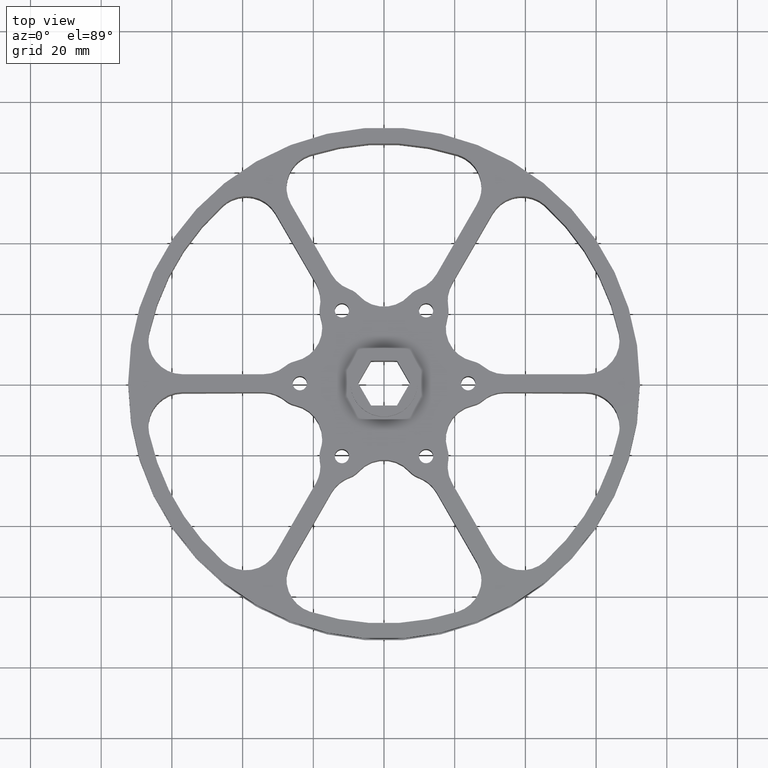
[diagram: clean part render]
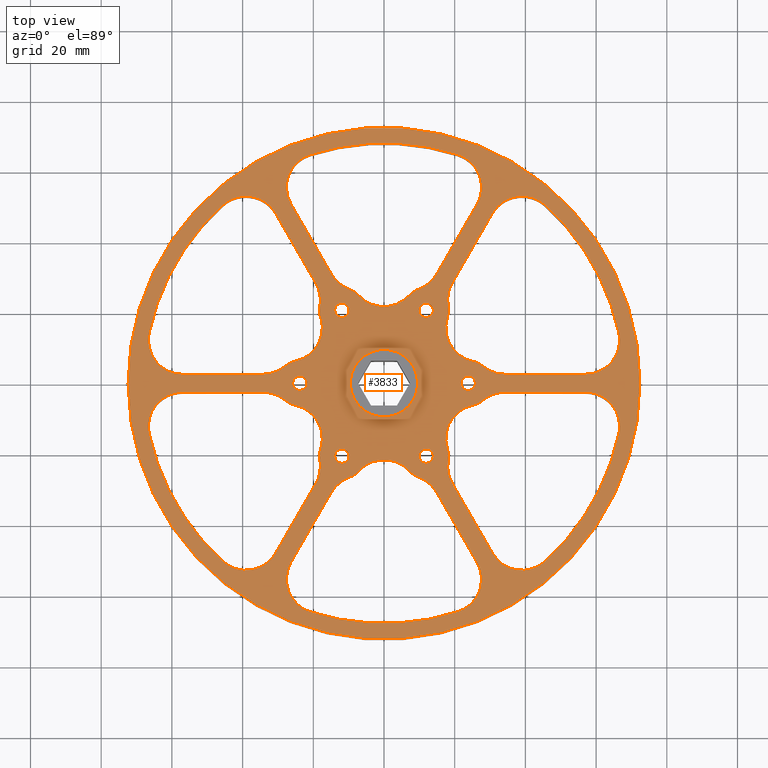
[diagram: same view with one face highlighted and labeled with its STEP entity id]
A machine part, top view. The second image highlights one B-rep face of the part: STEP entity #3833.
In plain terms, the highlighted planar face has unit normal (0, 0, 1).
Its self-contained STEP definition (entity closure, byte-faithful):
#1 = DIRECTION ( 'NONE',  ( 0.0000000000000000000, 1.000000000000000000, 0.0000000000000000000 ) ) ;
#11 = DIRECTION ( 'NONE',  ( 0.0000000000000000000, 0.0000000000000000000, 1.000000000000000000 ) ) ;
#13 = ORIENTED_EDGE ( 'NONE', *, *, #660, .T. ) ;
#15 = CIRCLE ( 'NONE', #1581, 0.3799999999999999489 ) ;
#19 = ORIENTED_EDGE ( 'NONE', *, *, #3947, .F. ) ;
#30 = LINE ( 'NONE', #2016, #2582 ) ;
#37 = DIRECTION ( 'NONE',  ( 0.0000000000000000000, 0.0000000000000000000, -1.000000000000000000 ) ) ;
#47 = EDGE_LOOP ( 'NONE', ( #1236, #3180, #2156, #695, #2550, #1443, #4175, #264, #901, #2987, #251, #13 ) ) ;
#50 = CARTESIAN_POINT ( 'NONE',  ( -2.244242633941351261, -0.4799999999999831068, 1.125000000000000000 ) ) ;
#68 = ORIENTED_EDGE ( 'NONE', *, *, #1587, .F. ) ;
#69 = CIRCLE ( 'NONE', #2360, 0.3799999999999998934 ) ;
#74 = CIRCLE ( 'NONE', #2698, 0.3800000000000000044 ) ;
#79 = CIRCLE ( 'NONE', #106, 2.674999999999999822 ) ;
#87 = AXIS2_PLACEMENT_3D ( 'NONE', #1791, #2579, #3254 ) ;
#88 = EDGE_CURVE ( 'NONE', #3057, #3289, #3298, .T. ) ;
#97 = DIRECTION ( 'NONE',  ( 1.000000000000000000, 0.0000000000000000000, 0.0000000000000000000 ) ) ;
#105 = ORIENTED_EDGE ( 'NONE', *, *, #4028, .F. ) ;
#106 = AXIS2_PLACEMENT_3D ( 'NONE', #3111, #1126, #3461 ) ;
#108 = FACE_BOUND ( 'NONE', #1301, .T. ) ;
#116 = ORIENTED_EDGE ( 'NONE', *, *, #2681, .F. ) ;
#126 = EDGE_CURVE ( 'NONE', #2036, #4261, #3401, .T. ) ;
#141 = CARTESIAN_POINT ( 'NONE',  ( -0.9375000000000004441, 1.336309304147087792E-14, 1.125000000000000444 ) ) ;
#149 = ORIENTED_EDGE ( 'NONE', *, *, #421, .F. ) ;
#153 = CIRCLE ( 'NONE', #3259, 0.3800000000000000600 ) ;
#156 = DIRECTION ( 'NONE',  ( 0.4999999999999918954, -0.8660254037844433705, 0.0000000000000000000 ) ) ;
#160 = VECTOR ( 'NONE', #3935, 39.37007874015748143 ) ;
#161 = CARTESIAN_POINT ( 'NONE',  ( -1.208723857349127018, -1.893571133249301486, 1.125000000000000000 ) ) ;
#162 = AXIS2_PLACEMENT_3D ( 'NONE', #3204, #1206, #3542 ) ;
#171 = VERTEX_POINT ( 'NONE', #3033 ) ;
#172 = AXIS2_PLACEMENT_3D ( 'NONE', #3638, #906, #3222 ) ;
#178 = DIRECTION ( 'NONE',  ( 0.0000000000000000000, 0.0000000000000000000, 1.000000000000000000 ) ) ;
#180 = CARTESIAN_POINT ( 'NONE',  ( 1.792440584468726339, -1.985643913482326939, 1.125000000000000000 ) ) ;
#186 = VERTEX_POINT ( 'NONE', #2377 ) ;
#188 = ORIENTED_EDGE ( 'NONE', *, *, #847, .F. ) ;
#189 = CIRCLE ( 'NONE', #3993, 0.07949999999999979305 ) ;
#193 = DIRECTION ( 'NONE',  ( 0.0000000000000000000, 0.0000000000000000000, 1.000000000000000000 ) ) ;
#194 = DIRECTION ( 'NONE',  ( -0.4999999999999916178, 0.8660254037844433705, 0.0000000000000000000 ) ) ;
#195 = AXIS2_PLACEMENT_3D ( 'NONE', #2256, #266, #2593 ) ;
#196 = CARTESIAN_POINT ( 'NONE',  ( 0.0000000000000000000, 0.0000000000000000000, 1.125000000000000000 ) ) ;
#204 = DIRECTION ( 'NONE',  ( 0.0000000000000000000, 0.0000000000000000000, -1.000000000000000000 ) ) ;
#207 = DIRECTION ( 'NONE',  ( 0.0000000000000000000, 0.0000000000000000000, 1.000000000000000000 ) ) ;
#208 = EDGE_CURVE ( 'NONE', #1756, #282, #470, .T. ) ;
#215 = EDGE_LOOP ( 'NONE', ( #526, #1074, #1648, #3535, #947, #458, #1895, #2943, #389, #1846, #3624, #1007 ) ) ;
#216 = FACE_BOUND ( 'NONE', #4101, .T. ) ;
#233 = VERTEX_POINT ( 'NONE', #3056 ) ;
#251 = ORIENTED_EDGE ( 'NONE', *, *, #2790, .F. ) ;
#258 = CARTESIAN_POINT ( 'NONE',  ( 0.9375000000000000000, 0.0000000000000000000, 1.125000000000000000 ) ) ;
#264 = ORIENTED_EDGE ( 'NONE', *, *, #3776, .F. ) ;
#266 = DIRECTION ( 'NONE',  ( -0.0000000000000000000, -0.0000000000000000000, -1.000000000000000000 ) ) ;
#282 = VERTEX_POINT ( 'NONE', #986 ) ;
#283 = AXIS2_PLACEMENT_3D ( 'NONE', #3019, #3116, #1959 ) ;
#284 = AXIS2_PLACEMENT_3D ( 'NONE', #1813, #4157, #2149 ) ;
#290 = CARTESIAN_POINT ( 'NONE',  ( 0.4687499999999922839, -0.7323988160479162346, 1.125000000000000444 ) ) ;
#293 = ORIENTED_EDGE ( 'NONE', *, *, #2969, .F. ) ;
#308 = AXIS2_PLACEMENT_3D ( 'NONE', #2391, #408, #2739 ) ;
#312 = AXIS2_PLACEMENT_3D ( 'NONE', #3923, #178, #4268 ) ;
#324 = FACE_BOUND ( 'NONE', #4317, .T. ) ;
#325 = EDGE_LOOP ( 'NONE', ( #2737, #412 ) ) ;
#337 = VERTEX_POINT ( 'NONE', #4096 ) ;
#344 = CARTESIAN_POINT ( 'NONE',  ( 0.9375000000000003331, -0.07950000000001972156, 1.125000000000000444 ) ) ;
#350 = EDGE_CURVE ( 'NONE', #3747, #2659, #1347, .T. ) ;
#354 = DIRECTION ( 'NONE',  ( 0.0000000000000000000, 0.0000000000000000000, 1.000000000000000000 ) ) ;
#358 = DIRECTION ( 'NONE',  ( 0.0000000000000000000, 0.0000000000000000000, 1.000000000000000000 ) ) ;
#364 = EDGE_CURVE ( 'NONE', #2666, #2533, #729, .T. ) ;
#366 = CIRCLE ( 'NONE', #2316, 0.3800000000000000600 ) ;
#373 = DIRECTION ( 'NONE',  ( 1.000000000000000000, -5.800299274326415471E-15, -0.0000000000000000000 ) ) ;
#381 = CARTESIAN_POINT ( 'NONE',  ( -0.9375000000000004441, -0.07949999999998642874, 1.125000000000000444 ) ) ;
#385 = AXIS2_PLACEMENT_3D ( 'NONE', #3219, #1224, #3561 ) ;
#386 = DIRECTION ( 'NONE',  ( 1.000000000000000000, 8.986342084421918015E-16, 0.0000000000000000000 ) ) ;
#389 = ORIENTED_EDGE ( 'NONE', *, *, #1464, .F. ) ;
#390 = CARTESIAN_POINT ( 'NONE',  ( -1.067652198059346969, 0.6164092839504820009, 1.125000000000000000 ) ) ;
#392 = AXIS2_PLACEMENT_3D ( 'NONE', #2267, #1819, #4160 ) ;
#402 = VERTEX_POINT ( 'NONE', #4165 ) ;
#403 = DIRECTION ( 'NONE',  ( -1.000000000000000000, 0.0000000000000000000, 0.0000000000000000000 ) ) ;
#406 = DIRECTION ( 'NONE',  ( 0.5000000000000041078, 0.8660254037844361541, 0.0000000000000000000 ) ) ;
#407 = ORIENTED_EDGE ( 'NONE', *, *, #786, .T. ) ;
#408 = DIRECTION ( 'NONE',  ( -0.0000000000000000000, -0.0000000000000000000, -1.000000000000000000 ) ) ;
#411 = AXIS2_PLACEMENT_3D ( 'NONE', #1601, #3955, #1938 ) ;
#412 = ORIENTED_EDGE ( 'NONE', *, *, #814, .T. ) ;
#413 = VERTEX_POINT ( 'NONE', #180 ) ;
#418 = AXIS2_PLACEMENT_3D ( 'NONE', #1468, #3819, #2837 ) ;
#419 = ORIENTED_EDGE ( 'NONE', *, *, #1062, .T. ) ;
#421 = EDGE_CURVE ( 'NONE', #1797, #2180, #3121, .T. ) ;
#441 = CIRCLE ( 'NONE', #2096, 0.07949999999999979305 ) ;
#442 = AXIS2_PLACEMENT_3D ( 'NONE', #953, #3272, #1273 ) ;
#443 = CARTESIAN_POINT ( 'NONE',  ( -1.345544115262067075, 0.4800000000000191336, 1.125000000000000000 ) ) ;
#448 = ORIENTED_EDGE ( 'NONE', *, *, #3994, .T. ) ;
#450 = DIRECTION ( 'NONE',  ( 0.0000000000000000000, 0.0000000000000000000, 1.000000000000000000 ) ) ;
#458 = ORIENTED_EDGE ( 'NONE', *, *, #2224, .F. ) ;
#464 = AXIS2_PLACEMENT_3D ( 'NONE', #2743, #751, #3063 ) ;
#468 = DIRECTION ( 'NONE',  ( 0.0000000000000000000, 1.000000000000000000, 0.0000000000000000000 ) ) ;
#470 = CIRCLE ( 'NONE', #939, 0.3800000000000002820 ) ;
#479 = VERTEX_POINT ( 'NONE', #1840 ) ;
#489 = CARTESIAN_POINT ( 'NONE',  ( 1.423167634191697006, 2.264998650107590716, 1.125000000000000000 ) ) ;
#490 = CARTESIAN_POINT ( 'NONE',  ( 0.7064096024045146693, 0.7343236048981258701, 1.125000000000000000 ) ) ;
#494 = AXIS2_PLACEMENT_3D ( 'NONE', #4280, #3603, #3738 ) ;
#496 = CARTESIAN_POINT ( 'NONE',  ( -2.850000000000000533, 0.0000000000000000000, 1.125000000000000000 ) ) ;
#507 = VERTEX_POINT ( 'NONE', #3552 ) ;
#513 = VERTEX_POINT ( 'NONE', #1541 ) ;
#515 = DIRECTION ( 'NONE',  ( 0.4999999999999979461, -0.8660254037844398178, 0.0000000000000000000 ) ) ;
#526 = ORIENTED_EDGE ( 'NONE', *, *, #3431, .F. ) ;
#528 = LINE ( 'NONE', #2901, #3184 ) ;
#531 = CARTESIAN_POINT ( 'NONE',  ( 0.9375000000000003331, 0.07949999999997986455, 1.125000000000000444 ) ) ;
#541 = PLANE ( 'NONE',  #3292 ) ;
#546 = AXIS2_PLACEMENT_3D ( 'NONE', #141, #2460, #468 ) ;
#552 = EDGE_CURVE ( 'NONE', #1470, #3329, #891, .T. ) ;
#560 = DIRECTION ( 'NONE',  ( -0.4999999999999868994, 0.8660254037844461461, 0.0000000000000000000 ) ) ;
#561 = VERTEX_POINT ( 'NONE', #3896 ) ;
#563 = EDGE_CURVE ( 'NONE', #4256, #3887, #1799, .T. ) ;
#569 = VERTEX_POINT ( 'NONE', #3925 ) ;
#580 = DIRECTION ( 'NONE',  ( 0.0000000000000000000, 0.0000000000000000000, 1.000000000000000000 ) ) ;
#582 = DIRECTION ( 'NONE',  ( -0.4999999999999982236, 0.8660254037844397068, 0.0000000000000000000 ) ) ;
#589 = DIRECTION ( 'NONE',  ( 1.000000000000000000, 0.0000000000000000000, 0.0000000000000000000 ) ) ;
#610 = DIRECTION ( 'NONE',  ( -0.0000000000000000000, -0.0000000000000000000, -1.000000000000000000 ) ) ;
#612 = CARTESIAN_POINT ( 'NONE',  ( -0.9375000000000000000, 1.386412856784613539E-14, 1.125000000000000000 ) ) ;
#616 = CARTESIAN_POINT ( 'NONE',  ( -1.345544115262074847, -0.09999999999998834821, 1.125000000000000000 ) ) ;
#627 = VERTEX_POINT ( 'NONE', #3596 ) ;
#631 = EDGE_CURVE ( 'NONE', #1011, #1327, #3138, .T. ) ;
#632 = DIRECTION ( 'NONE',  ( 0.0000000000000000000, 0.0000000000000000000, 1.000000000000000000 ) ) ;
#633 = CARTESIAN_POINT ( 'NONE',  ( 0.4687499999999981681, -0.8118988160479124749, 1.125000000000000000 ) ) ;
#642 = CARTESIAN_POINT ( 'NONE',  ( 0.7064291231541851568, 2.183571133249294860, 1.125000000000000000 ) ) ;
#645 = ORIENTED_EDGE ( 'NONE', *, *, #2479, .T. ) ;
#653 = EDGE_CURVE ( 'NONE', #627, #507, #1388, .T. ) ;
#658 = CIRCLE ( 'NONE', #162, 0.2499999999999998335 ) ;
#660 = EDGE_CURVE ( 'NONE', #2040, #561, #3130, .T. ) ;
#661 = LINE ( 'NONE', #1538, #4093 ) ;
#669 = DIRECTION ( 'NONE',  ( 0.4999999999999854561, -0.8660254037844469233, 0.0000000000000000000 ) ) ;
#684 = VERTEX_POINT ( 'NONE', #3013 ) ;
#695 = ORIENTED_EDGE ( 'NONE', *, *, #1231, .F. ) ;
#702 = DIRECTION ( 'NONE',  ( 1.000000000000000000, 0.0000000000000000000, 0.0000000000000000000 ) ) ;
#704 = AXIS2_PLACEMENT_3D ( 'NONE', #4003, #11, #2326 ) ;
#724 = CARTESIAN_POINT ( 'NONE',  ( 1.345544115262073515, -0.1000000000000098588, 1.125000000000000000 ) ) ;
#729 = CIRCLE ( 'NONE', #1148, 0.3799999999999999489 ) ;
#744 = CARTESIAN_POINT ( 'NONE',  ( 0.7187499999999980016, -0.8118988160479124749, 1.125000000000000000 ) ) ;
#751 = DIRECTION ( 'NONE',  ( -0.0000000000000000000, -0.0000000000000000000, -1.000000000000000000 ) ) ;
#755 = CIRCLE ( 'NONE', #1213, 0.3800000000000000600 ) ;
#756 = DIRECTION ( 'NONE',  ( -0.0000000000000000000, -0.0000000000000000000, -1.000000000000000000 ) ) ;
#769 = CARTESIAN_POINT ( 'NONE',  ( -0.5861695172525730468, 1.215275385729622792, 1.125000000000000000 ) ) ;
#773 = DIRECTION ( 'NONE',  ( -0.0000000000000000000, -0.0000000000000000000, -1.000000000000000000 ) ) ;
#775 = AXIS2_PLACEMENT_3D ( 'NONE', #2167, #193, #2506 ) ;
#776 = EDGE_CURVE ( 'NONE', #777, #233, #1269, .T. ) ;
#777 = VERTEX_POINT ( 'NONE', #744 ) ;
#784 = CARTESIAN_POINT ( 'NONE',  ( 2.615838364179998266, -0.5594771241830254205, 1.125000000000000000 ) ) ;
#786 = EDGE_CURVE ( 'NONE', #3442, #1070, #1942, .T. ) ;
#787 = LINE ( 'NONE', #1523, #1554 ) ;
#814 = EDGE_CURVE ( 'NONE', #1792, #3983, #2042, .T. ) ;
#820 = EDGE_CURVE ( 'NONE', #903, #4126, #189, .T. ) ;
#821 = DIRECTION ( 'NONE',  ( 0.0000000000000000000, 0.0000000000000000000, 1.000000000000000000 ) ) ;
#829 = CARTESIAN_POINT ( 'NONE',  ( 1.208723857349099262, -1.893571133249319915, 1.125000000000000000 ) ) ;
#832 = ORIENTED_EDGE ( 'NONE', *, *, #2868, .T. ) ;
#835 = AXIS2_PLACEMENT_3D ( 'NONE', #258, #2587, #589 ) ;
#843 = ORIENTED_EDGE ( 'NONE', *, *, #968, .T. ) ;
#847 = EDGE_CURVE ( 'NONE', #3980, #2368, #79, .T. ) ;
#858 = EDGE_CURVE ( 'NONE', #3277, #3530, #1733, .T. ) ;
#865 = DIRECTION ( 'NONE',  ( 0.0000000000000000000, -0.0000000000000000000, -1.000000000000000000 ) ) ;
#876 = CARTESIAN_POINT ( 'NONE',  ( 0.4687500000000154321, 0.8118988160479025940, 1.125000000000000444 ) ) ;
#885 = CARTESIAN_POINT ( 'NONE',  ( -0.6876521980593468530, 0.6164092839504820009, 1.125000000000000000 ) ) ;
#891 = CIRCLE ( 'NONE', #4072, 2.850000000000000533 ) ;
#896 = CIRCLE ( 'NONE', #3515, 0.07949999999999979305 ) ;
#901 = ORIENTED_EDGE ( 'NONE', *, *, #1489, .F. ) ;
#903 = VERTEX_POINT ( 'NONE', #1488 ) ;
#906 = DIRECTION ( 'NONE',  ( -0.0000000000000000000, -6.123233995736766036E-17, -1.000000000000000000 ) ) ;
#907 = EDGE_CURVE ( 'NONE', #3120, #3067, #974, .T. ) ;
#912 = EDGE_LOOP ( 'NONE', ( #188, #1067, #1059, #2107, #3492, #3394, #3169, #1947, #19, #2262, #4071, #645 ) ) ;
#913 = DIRECTION ( 'NONE',  ( 0.5000000000000150990, 0.8660254037844299368, 0.0000000000000000000 ) ) ;
#936 = EDGE_CURVE ( 'NONE', #1572, #1201, #2521, .T. ) ;
#939 = AXIS2_PLACEMENT_3D ( 'NONE', #2050, #2390, #406 ) ;
#944 = CIRCLE ( 'NONE', #283, 0.07949999999999979305 ) ;
#947 = ORIENTED_EDGE ( 'NONE', *, *, #776, .F. ) ;
#950 = DIRECTION ( 'NONE',  ( 0.5000000000000043299, 0.8660254037844360431, 0.0000000000000000000 ) ) ;
#953 = CARTESIAN_POINT ( 'NONE',  ( 0.2570798638144930481, -1.405275385729615856, 1.125000000000000000 ) ) ;
#957 = EDGE_CURVE ( 'NONE', #233, #2605, #755, .T. ) ;
#965 = CARTESIAN_POINT ( 'NONE',  ( -1.099422267961141619, -0.1904761904761857749, 1.125000000000000000 ) ) ;
#968 = EDGE_CURVE ( 'NONE', #3103, #1459, #4195, .T. ) ;
#972 = DIRECTION ( 'NONE',  ( 0.4999999999999980571, -0.8660254037844398178, 0.0000000000000000000 ) ) ;
#974 = CIRCLE ( 'NONE', #775, 0.3800000000000002820 ) ;
#985 = AXIS2_PLACEMENT_3D ( 'NONE', #1869, #2861, #3846 ) ;
#986 = CARTESIAN_POINT ( 'NONE',  ( -0.2827380952381033374, -0.9789304636086320066, 1.125000000000000000 ) ) ;
#992 = DIRECTION ( 'NONE',  ( -0.0000000000000000000, 3.061616997868408286E-17, -1.000000000000000000 ) ) ;
#999 = FACE_BOUND ( 'NONE', #1568, .T. ) ;
#1004 = AXIS2_PLACEMENT_3D ( 'NONE', #3519, #1505, #3860 ) ;
#1007 = ORIENTED_EDGE ( 'NONE', *, *, #2811, .T. ) ;
#1011 = VERTEX_POINT ( 'NONE', #1851 ) ;
#1016 = EDGE_CURVE ( 'NONE', #2533, #1933, #661, .T. ) ;
#1022 = DIRECTION ( 'NONE',  ( 1.000000000000000000, 7.189073667537533228E-16, 0.0000000000000000000 ) ) ;
#1027 = CARTESIAN_POINT ( 'NONE',  ( 0.5861695172525815956, -1.215275385729618796, 1.125000000000000000 ) ) ;
#1029 = AXIS2_PLACEMENT_3D ( 'NONE', #1882, #2718, #2878 ) ;
#1044 = LINE ( 'NONE', #2277, #160 ) ;
#1059 = ORIENTED_EDGE ( 'NONE', *, *, #1016, .F. ) ;
#1061 = CIRCLE ( 'NONE', #2927, 0.3799999999999998934 ) ;
#1062 = EDGE_CURVE ( 'NONE', #2376, #4138, #441, .T. ) ;
#1067 = ORIENTED_EDGE ( 'NONE', *, *, #2903, .T. ) ;
#1070 = VERTEX_POINT ( 'NONE', #2660 ) ;
#1074 = ORIENTED_EDGE ( 'NONE', *, *, #4059, .T. ) ;
#1078 = AXIS2_PLACEMENT_3D ( 'NONE', #2623, #632, #2958 ) ;
#1083 = AXIS2_PLACEMENT_3D ( 'NONE', #2866, #3198, #1202 ) ;
#1086 = EDGE_CURVE ( 'NONE', #3442, #2842, #2088, .T. ) ;
#1092 = FACE_BOUND ( 'NONE', #3404, .T. ) ;
#1099 = CIRCLE ( 'NONE', #2499, 0.3800000000000000600 ) ;
#1102 = CARTESIAN_POINT ( 'NONE',  ( -1.035518776592196488, 1.993571133249324889, 1.125000000000000000 ) ) ;
#1103 = CARTESIAN_POINT ( 'NONE',  ( -0.2570798638144831116, 1.405275385729617188, 1.125000000000000000 ) ) ;
#1104 = CARTESIAN_POINT ( 'NONE',  ( 0.4687500000000154321, 0.7323988160479028009, 1.125000000000000444 ) ) ;
#1105 = CIRCLE ( 'NONE', #2437, 0.2500000000000067168 ) ;
#1113 = DIRECTION ( 'NONE',  ( -0.0000000000000000000, 6.123233995736766036E-17, -1.000000000000000000 ) ) ;
#1114 = CARTESIAN_POINT ( 'NONE',  ( -1.792440584468755871, -1.985643913482300071, 1.125000000000000000 ) ) ;
#1119 = CARTESIAN_POINT ( 'NONE',  ( 0.9891476976426036849, 0.2446068587104990588, 1.125000000000000000 ) ) ;
#1122 = ORIENTED_EDGE ( 'NONE', *, *, #1228, .T. ) ;
#1126 = DIRECTION ( 'NONE',  ( 0.0000000000000000000, 0.0000000000000000000, 1.000000000000000000 ) ) ;
#1128 = CARTESIAN_POINT ( 'NONE',  ( -1.792440584468713016, 1.985643913482338929, 1.125000000000000000 ) ) ;
#1134 = VERTEX_POINT ( 'NONE', #2330 ) ;
#1135 = CARTESIAN_POINT ( 'NONE',  ( -0.4687499999999925060, 0.8118988160479155836, 1.125000000000000000 ) ) ;
#1137 = AXIS2_PLACEMENT_3D ( 'NONE', #196, #2512, #515 ) ;
#1141 = ORIENTED_EDGE ( 'NONE', *, *, #2539, .F. ) ;
#1144 = CARTESIAN_POINT ( 'NONE',  ( 2.624242633941344494, -0.4800000000000162470, 1.125000000000000000 ) ) ;
#1148 = AXIS2_PLACEMENT_3D ( 'NONE', #4150, #2142, #156 ) ;
#1161 = CARTESIAN_POINT ( 'NONE',  ( 0.0000000000000000000, 0.0000000000000000000, 1.125000000000000000 ) ) ;
#1167 = EDGE_CURVE ( 'NONE', #2589, #3887, #2895, .T. ) ;
#1171 = CARTESIAN_POINT ( 'NONE',  ( -1.067652198059346969, 0.6164092839504820009, 1.125000000000000000 ) ) ;
#1174 = CARTESIAN_POINT ( 'NONE',  ( -0.3847539142121152445, -1.047365708778742244, 1.125000000000000000 ) ) ;
#1182 = CARTESIAN_POINT ( 'NONE',  ( 1.345544115262074847, 0.09999999999998834821, 1.125000000000000000 ) ) ;
#1194 = VERTEX_POINT ( 'NONE', #1027 ) ;
#1195 = DIRECTION ( 'NONE',  ( 0.0000000000000000000, 1.000000000000000000, 0.0000000000000000000 ) ) ;
#1201 = VERTEX_POINT ( 'NONE', #3697 ) ;
#1202 = DIRECTION ( 'NONE',  ( 0.0000000000000000000, 1.000000000000000000, 0.0000000000000000000 ) ) ;
#1206 = DIRECTION ( 'NONE',  ( 0.0000000000000000000, 0.0000000000000000000, -1.000000000000000000 ) ) ;
#1213 = AXIS2_PLACEMENT_3D ( 'NONE', #2184, #207, #2524 ) ;
#1220 = EDGE_LOOP ( 'NONE', ( #1521, #2182 ) ) ;
#1224 = DIRECTION ( 'NONE',  ( 0.0000000000000000000, 0.0000000000000000000, 1.000000000000000000 ) ) ;
#1228 = EDGE_CURVE ( 'NONE', #2589, #479, #3570, .T. ) ;
#1231 = EDGE_CURVE ( 'NONE', #3480, #337, #30, .T. ) ;
#1236 = ORIENTED_EDGE ( 'NONE', *, *, #3975, .F. ) ;
#1243 = CARTESIAN_POINT ( 'NONE',  ( 0.3847539142121225164, 1.047365708778739357, 1.125000000000000000 ) ) ;
#1247 = EDGE_CURVE ( 'NONE', #3610, #3057, #1676, .T. ) ;
#1264 = DIRECTION ( 'NONE',  ( -1.000000000000000000, 0.0000000000000000000, 0.0000000000000000000 ) ) ;
#1269 = CIRCLE ( 'NONE', #2403, 0.2499999999999998057 ) ;
#1273 = DIRECTION ( 'NONE',  ( -0.5000000000000041078, -0.8660254037844362651, 0.0000000000000000000 ) ) ;
#1275 = AXIS2_PLACEMENT_3D ( 'NONE', #3844, #2160, #403 ) ;
#1287 = EDGE_CURVE ( 'NONE', #1325, #2033, #4141, .T. ) ;
#1296 = AXIS2_PLACEMENT_3D ( 'NONE', #3632, #1619, #3967 ) ;
#1301 = EDGE_LOOP ( 'NONE', ( #1699, #843 ) ) ;
#1305 = CIRCLE ( 'NONE', #2568, 0.3750000000000000555 ) ;
#1316 = ORIENTED_EDGE ( 'NONE', *, *, #3695, .F. ) ;
#1321 = DIRECTION ( 'NONE',  ( -0.0000000000000000000, -0.0000000000000000000, -1.000000000000000000 ) ) ;
#1325 = VERTEX_POINT ( 'NONE', #2407 ) ;
#1327 = VERTEX_POINT ( 'NONE', #1403 ) ;
#1330 = DIRECTION ( 'NONE',  ( 0.0000000000000000000, 0.0000000000000000000, 1.000000000000000000 ) ) ;
#1347 = CIRCLE ( 'NONE', #1363, 0.3799999999999998934 ) ;
#1349 = CARTESIAN_POINT ( 'NONE',  ( -2.244242633941341047, 0.4800000000000318456, 1.125000000000000000 ) ) ;
#1359 = CIRCLE ( 'NONE', #1400, 0.3799999999999998934 ) ;
#1363 = AXIS2_PLACEMENT_3D ( 'NONE', #2801, #821, #3132 ) ;
#1366 = DIRECTION ( 'NONE',  ( -0.0000000000000000000, 0.0000000000000000000, -1.000000000000000000 ) ) ;
#1378 = CARTESIAN_POINT ( 'NONE',  ( -1.345544115262072626, 0.1000000000000191430, 1.125000000000000000 ) ) ;
#1388 = CIRCLE ( 'NONE', #1078, 0.3750000000000000555 ) ;
#1389 = ORIENTED_EDGE ( 'NONE', *, *, #3109, .T. ) ;
#1400 = AXIS2_PLACEMENT_3D ( 'NONE', #1103, #3435, #1425 ) ;
#1402 = VECTOR ( 'NONE', #2486, 39.37007874015748143 ) ;
#1403 = CARTESIAN_POINT ( 'NONE',  ( -1.035518776592254664, -1.993571133249296246, 1.125000000000000000 ) ) ;
#1407 = AXIS2_PLACEMENT_3D ( 'NONE', #1171, #4148, #2461 ) ;
#1413 = DIRECTION ( 'NONE',  ( 0.0000000000000000000, 0.0000000000000000000, 1.000000000000000000 ) ) ;
#1418 = CARTESIAN_POINT ( 'NONE',  ( 0.7064096024045032340, -0.7343236048981357511, 1.125000000000000000 ) ) ;
#1420 = DIRECTION ( 'NONE',  ( -0.0000000000000000000, -3.061616997868444648E-17, -1.000000000000000000 ) ) ;
#1425 = DIRECTION ( 'NONE',  ( 0.5000000000000101030, 0.8660254037844328234, 0.0000000000000000000 ) ) ;
#1427 = AXIS2_PLACEMENT_3D ( 'NONE', #876, #3192, #1195 ) ;
#1432 = EDGE_CURVE ( 'NONE', #3864, #3663, #1061, .T. ) ;
#1443 = ORIENTED_EDGE ( 'NONE', *, *, #1615, .F. ) ;
#1454 = AXIS2_PLACEMENT_3D ( 'NONE', #390, #3701, #1685 ) ;
#1455 = DIRECTION ( 'NONE',  ( -0.4999999999999918954, 0.8660254037844432595, 0.0000000000000000000 ) ) ;
#1459 = VERTEX_POINT ( 'NONE', #3481 ) ;
#1464 = EDGE_CURVE ( 'NONE', #4209, #186, #74, .T. ) ;
#1468 = CARTESIAN_POINT ( 'NONE',  ( 0.7064291231541851568, 2.183571133249294860, 1.125000000000000000 ) ) ;
#1470 = VERTEX_POINT ( 'NONE', #496 ) ;
#1480 = CARTESIAN_POINT ( 'NONE',  ( 0.0000000000000000000, 0.0000000000000000000, 1.125000000000000000 ) ) ;
#1488 = CARTESIAN_POINT ( 'NONE',  ( -0.4687499999999922839, 0.8913988160479158207, 1.125000000000000444 ) ) ;
#1489 = EDGE_CURVE ( 'NONE', #1134, #402, #4191, .T. ) ;
#1493 = CIRCLE ( 'NONE', #172, 0.07949999999999979305 ) ;
#1497 = EDGE_CURVE ( 'NONE', #171, #1756, #1626, .T. ) ;
#1501 = DIRECTION ( 'NONE',  ( -0.0000000000000000000, -0.0000000000000000000, -1.000000000000000000 ) ) ;
#1503 = ORIENTED_EDGE ( 'NONE', *, *, #858, .T. ) ;
#1504 = LINE ( 'NONE', #3812, #4182 ) ;
#1505 = DIRECTION ( 'NONE',  ( -0.0000000000000000000, -3.061616997868370692E-17, -1.000000000000000000 ) ) ;
#1506 = ORIENTED_EDGE ( 'NONE', *, *, #3744, .T. ) ;
#1507 = AXIS2_PLACEMENT_3D ( 'NONE', #2746, #756, #3068 ) ;
#1521 = ORIENTED_EDGE ( 'NONE', *, *, #4106, .T. ) ;
#1523 = CARTESIAN_POINT ( 'NONE',  ( -1.423167634191697006, -2.264998650107590716, 1.125000000000000000 ) ) ;
#1536 = EDGE_CURVE ( 'NONE', #282, #2768, #658, .T. ) ;
#1538 = CARTESIAN_POINT ( 'NONE',  ( -1.423167634191648379, 2.264998650107620914, 1.125000000000000000 ) ) ;
#1541 = CARTESIAN_POINT ( 'NONE',  ( 0.7593745980094864789, 1.115275385729609159, 1.125000000000000000 ) ) ;
#1545 = VERTEX_POINT ( 'NONE', #885 ) ;
#1551 = CARTESIAN_POINT ( 'NONE',  ( -1.099422267961140731, 0.1904761904762094782, 1.125000000000000000 ) ) ;
#1554 = VECTOR ( 'NONE', #950, 39.37007874015748143 ) ;
#1568 = EDGE_LOOP ( 'NONE', ( #1503, #1920 ) ) ;
#1572 = VERTEX_POINT ( 'NONE', #2549 ) ;
#1573 = CARTESIAN_POINT ( 'NONE',  ( -0.7064096024044980160, 0.7343236048981405251, 1.125000000000000000 ) ) ;
#1578 = CARTESIAN_POINT ( 'NONE',  ( 0.5861695172526178998, 1.215275385729601032, 1.125000000000000000 ) ) ;
#1581 = AXIS2_PLACEMENT_3D ( 'NONE', #3867, #4196, #2190 ) ;
#1587 = EDGE_CURVE ( 'NONE', #2180, #2342, #3191, .T. ) ;
#1596 = EDGE_LOOP ( 'NONE', ( #1834, #4177 ) ) ;
#1601 = CARTESIAN_POINT ( 'NONE',  ( -0.7064291231541702798, -2.183571133249299301, 1.125000000000000000 ) ) ;
#1615 = EDGE_CURVE ( 'NONE', #1994, #1640, #2203, .T. ) ;
#1616 = VERTEX_POINT ( 'NONE', #4253 ) ;
#1617 = DIRECTION ( 'NONE',  ( 1.000000000000000000, -3.594536833768767206E-15, 0.0000000000000000000 ) ) ;
#1619 = DIRECTION ( 'NONE',  ( -0.0000000000000000000, -0.0000000000000000000, -1.000000000000000000 ) ) ;
#1626 = CIRCLE ( 'NONE', #3365, 0.2500000000000067168 ) ;
#1633 = ORIENTED_EDGE ( 'NONE', *, *, #2048, .F. ) ;
#1636 = ORIENTED_EDGE ( 'NONE', *, *, #4006, .F. ) ;
#1640 = VERTEX_POINT ( 'NONE', #2244 ) ;
#1646 = DIRECTION ( 'NONE',  ( 1.000000000000000000, 7.189073667537533228E-16, 0.0000000000000000000 ) ) ;
#1648 = ORIENTED_EDGE ( 'NONE', *, *, #2365, .F. ) ;
#1653 = VERTEX_POINT ( 'NONE', #3249 ) ;
#1661 = ORIENTED_EDGE ( 'NONE', *, *, #1432, .T. ) ;
#1676 = LINE ( 'NONE', #1696, #4254 ) ;
#1685 = DIRECTION ( 'NONE',  ( 0.4999999999999918399, -0.8660254037844433705, 0.0000000000000000000 ) ) ;
#1696 = CARTESIAN_POINT ( 'NONE',  ( -2.673130187626481913, 0.1000000000000380029, 1.125000000000000000 ) ) ;
#1699 = ORIENTED_EDGE ( 'NONE', *, *, #3012, .T. ) ;
#1731 = CARTESIAN_POINT ( 'NONE',  ( -0.6876521980593605088, -0.6164092839504583532, 1.125000000000000000 ) ) ;
#1733 = CIRCLE ( 'NONE', #546, 0.07949999999999979305 ) ;
#1734 = DIRECTION ( 'NONE',  ( -0.0000000000000000000, 0.0000000000000000000, -1.000000000000000000 ) ) ;
#1756 = VERTEX_POINT ( 'NONE', #2318 ) ;
#1763 = CIRCLE ( 'NONE', #1137, 2.674999999999999822 ) ;
#1767 = AXIS2_PLACEMENT_3D ( 'NONE', #633, #2959, #972 ) ;
#1768 = CIRCLE ( 'NONE', #3854, 0.3800000000000000600 ) ;
#1791 = CARTESIAN_POINT ( 'NONE',  ( 0.7064291231541223182, -2.183571133249313956, 1.125000000000000000 ) ) ;
#1792 = VERTEX_POINT ( 'NONE', #344 ) ;
#1797 = VERTEX_POINT ( 'NONE', #2996 ) ;
#1799 = CIRCLE ( 'NONE', #195, 0.3800000000000000600 ) ;
#1811 = CIRCLE ( 'NONE', #3943, 0.3800000000000000600 ) ;
#1813 = CARTESIAN_POINT ( 'NONE',  ( 1.345544115262077067, 0.4799999999999883804, 1.125000000000000000 ) ) ;
#1814 = DIRECTION ( 'NONE',  ( -0.0000000000000000000, -0.0000000000000000000, -1.000000000000000000 ) ) ;
#1818 = ORIENTED_EDGE ( 'NONE', *, *, #2689, .F. ) ;
#1819 = DIRECTION ( 'NONE',  ( 0.0000000000000000000, 0.0000000000000000000, 1.000000000000000000 ) ) ;
#1825 = DIRECTION ( 'NONE',  ( -0.5000000000000039968, -0.8660254037844363761, 0.0000000000000000000 ) ) ;
#1829 = DIRECTION ( 'NONE',  ( 0.5000000000000039968, 0.8660254037844364872, 0.0000000000000000000 ) ) ;
#1830 = DIRECTION ( 'NONE',  ( 0.0000000000000000000, 0.0000000000000000000, 1.000000000000000000 ) ) ;
#1832 = EDGE_CURVE ( 'NONE', #3513, #1653, #2576, .T. ) ;
#1834 = ORIENTED_EDGE ( 'NONE', *, *, #653, .F. ) ;
#1840 = CARTESIAN_POINT ( 'NONE',  ( -2.244242633941349041, -0.09999999999998318567, 1.125000000000000000 ) ) ;
#1846 = ORIENTED_EDGE ( 'NONE', *, *, #3691, .F. ) ;
#1851 = CARTESIAN_POINT ( 'NONE',  ( -0.8233977797112879138, -2.545121037665305064, 1.125000000000000000 ) ) ;
#1869 = CARTESIAN_POINT ( 'NONE',  ( -0.9375000000000000000, 0.0000000000000000000, 1.125000000000000000 ) ) ;
#1873 = FACE_OUTER_BOUND ( 'NONE', #2011, .T. ) ;
#1882 = CARTESIAN_POINT ( 'NONE',  ( 0.9375000000000003331, -1.991952822626510649E-14, 1.125000000000000444 ) ) ;
#1895 = ORIENTED_EDGE ( 'NONE', *, *, #907, .F. ) ;
#1900 = EDGE_CURVE ( 'NONE', #3043, #337, #4034, .T. ) ;
#1920 = ORIENTED_EDGE ( 'NONE', *, *, #3055, .T. ) ;
#1926 = DIRECTION ( 'NONE',  ( -0.0000000000000000000, 6.123233995736766036E-17, -1.000000000000000000 ) ) ;
#1933 = VERTEX_POINT ( 'NONE', #2052 ) ;
#1938 = DIRECTION ( 'NONE',  ( 1.000000000000000000, 0.0000000000000000000, 0.0000000000000000000 ) ) ;
#1942 = CIRCLE ( 'NONE', #1507, 0.3799999999999999489 ) ;
#1947 = ORIENTED_EDGE ( 'NONE', *, *, #4022, .F. ) ;
#1959 = DIRECTION ( 'NONE',  ( 0.0000000000000000000, 1.000000000000000000, 0.0000000000000000000 ) ) ;
#1969 = FACE_BOUND ( 'NONE', #912, .T. ) ;
#1975 = DIRECTION ( 'NONE',  ( -0.0000000000000000000, -6.123233995736766036E-17, -1.000000000000000000 ) ) ;
#1976 = EDGE_CURVE ( 'NONE', #2842, #2036, #1359, .T. ) ;
#1983 = DIRECTION ( 'NONE',  ( 0.0000000000000000000, 0.0000000000000000000, 1.000000000000000000 ) ) ;
#1994 = VERTEX_POINT ( 'NONE', #1119 ) ;
#1995 = CARTESIAN_POINT ( 'NONE',  ( -1.537813510787175986, 1.703571133249333514, 1.125000000000000000 ) ) ;
#2001 = DIRECTION ( 'NONE',  ( 1.000000000000000000, 0.0000000000000000000, 0.0000000000000000000 ) ) ;
#2005 = DIRECTION ( 'NONE',  ( -0.0000000000000000000, -0.0000000000000000000, -1.000000000000000000 ) ) ;
#2010 = CARTESIAN_POINT ( 'NONE',  ( -0.4687500000000043854, -0.8118988160479085892, 1.125000000000000000 ) ) ;
#2011 = EDGE_LOOP ( 'NONE', ( #2686, #832 ) ) ;
#2016 = CARTESIAN_POINT ( 'NONE',  ( 2.673130187626484133, 0.09999999999998070155, 1.125000000000000000 ) ) ;
#2017 = VECTOR ( 'NONE', #194, 39.37007874015748854 ) ;
#2026 = CIRCLE ( 'NONE', #2650, 0.07949999999999979305 ) ;
#2029 = CIRCLE ( 'NONE', #2129, 0.3800000000000000600 ) ;
#2030 = DIRECTION ( 'NONE',  ( 1.000000000000000000, -1.432187701766451937E-14, 0.0000000000000000000 ) ) ;
#2033 = VERTEX_POINT ( 'NONE', #1144 ) ;
#2036 = VERTEX_POINT ( 'NONE', #3477 ) ;
#2040 = VERTEX_POINT ( 'NONE', #3134 ) ;
#2042 = CIRCLE ( 'NONE', #3531, 0.07949999999999979305 ) ;
#2045 = VERTEX_POINT ( 'NONE', #490 ) ;
#2048 = EDGE_CURVE ( 'NONE', #1011, #3663, #2625, .T. ) ;
#2050 = CARTESIAN_POINT ( 'NONE',  ( -1.365923996832131649E-14, -1.232818567900930695, 1.125000000000000000 ) ) ;
#2052 = CARTESIAN_POINT ( 'NONE',  ( -1.208723857349086384, 1.893571133249328353, 1.125000000000000000 ) ) ;
#2063 = CARTESIAN_POINT ( 'NONE',  ( 0.9891476976426007983, -0.2446068587105139358, 1.125000000000000000 ) ) ;
#2088 = LINE ( 'NONE', #2991, #2992 ) ;
#2091 = ORIENTED_EDGE ( 'NONE', *, *, #2603, .F. ) ;
#2093 = CARTESIAN_POINT ( 'NONE',  ( 0.0000000000000000000, 0.0000000000000000000, 1.125000000000000000 ) ) ;
#2096 = AXIS2_PLACEMENT_3D ( 'NONE', #3995, #1975, #1 ) ;
#2097 = ORIENTED_EDGE ( 'NONE', *, *, #208, .F. ) ;
#2105 = DIRECTION ( 'NONE',  ( 0.0000000000000000000, 0.0000000000000000000, 1.000000000000000000 ) ) ;
#2107 = ORIENTED_EDGE ( 'NONE', *, *, #364, .F. ) ;
#2113 = DIRECTION ( 'NONE',  ( 0.0000000000000000000, 0.0000000000000000000, 1.000000000000000000 ) ) ;
#2120 = LINE ( 'NONE', #3501, #2017 ) ;
#2126 = CIRCLE ( 'NONE', #2703, 0.3799999999999998934 ) ;
#2129 = AXIS2_PLACEMENT_3D ( 'NONE', #1349, #2005, #702 ) ;
#2131 = CARTESIAN_POINT ( 'NONE',  ( -0.7084642514475504305, 0.9252753857296313056, 1.125000000000000000 ) ) ;
#2139 = DIRECTION ( 'NONE',  ( 1.000000000000000000, 0.0000000000000000000, -0.0000000000000000000 ) ) ;
#2142 = DIRECTION ( 'NONE',  ( 0.0000000000000000000, 0.0000000000000000000, 1.000000000000000000 ) ) ;
#2149 = DIRECTION ( 'NONE',  ( -1.000000000000000000, 0.0000000000000000000, 0.0000000000000000000 ) ) ;
#2156 = ORIENTED_EDGE ( 'NONE', *, *, #1900, .T. ) ;
#2160 = DIRECTION ( 'NONE',  ( -0.0000000000000000000, -0.0000000000000000000, -1.000000000000000000 ) ) ;
#2167 = CARTESIAN_POINT ( 'NONE',  ( 1.067652198059351409, -0.6164092839504746735, 1.125000000000000000 ) ) ;
#2179 = CARTESIAN_POINT ( 'NONE',  ( 0.4687499999999918399, -0.8118988160479160276, 1.125000000000000000 ) ) ;
#2180 = VERTEX_POINT ( 'NONE', #1243 ) ;
#2181 = FACE_BOUND ( 'NONE', #4264, .T. ) ;
#2182 = ORIENTED_EDGE ( 'NONE', *, *, #936, .T. ) ;
#2184 = CARTESIAN_POINT ( 'NONE',  ( 1.088464251447556652, -0.9252753857296238671, 1.125000000000000000 ) ) ;
#2185 = DIRECTION ( 'NONE',  ( 1.000000000000000000, 0.0000000000000000000, 0.0000000000000000000 ) ) ;
#2190 = DIRECTION ( 'NONE',  ( 0.4999999999999918954, -0.8660254037844433705, 0.0000000000000000000 ) ) ;
#2201 = EDGE_CURVE ( 'NONE', #1194, #171, #3985, .T. ) ;
#2203 = CIRCLE ( 'NONE', #835, 0.2499999999999998057 ) ;
#2205 = CARTESIAN_POINT ( 'NONE',  ( 0.0000000000000000000, 0.0000000000000000000, 1.125000000000000000 ) ) ;
#2214 = VERTEX_POINT ( 'NONE', #2606 ) ;
#2224 = EDGE_CURVE ( 'NONE', #3067, #777, #3878, .T. ) ;
#2225 = VERTEX_POINT ( 'NONE', #4270 ) ;
#2236 = VERTEX_POINT ( 'NONE', #616 ) ;
#2239 = CIRCLE ( 'NONE', #312, 2.674999999999999822 ) ;
#2243 = CARTESIAN_POINT ( 'NONE',  ( 2.850000000000000533, 3.490243377569957540E-16, 1.125000000000000000 ) ) ;
#2244 = CARTESIAN_POINT ( 'NONE',  ( 1.099422267961141619, 0.1904761904761857749, 1.125000000000000000 ) ) ;
#2256 = CARTESIAN_POINT ( 'NONE',  ( -1.537813510787212623, -1.703571133249299985, 1.125000000000000000 ) ) ;
#2262 = ORIENTED_EDGE ( 'NONE', *, *, #88, .F. ) ;
#2267 = CARTESIAN_POINT ( 'NONE',  ( -1.067652198059360735, -0.6164092839504583532, 1.125000000000000000 ) ) ;
#2270 = ORIENTED_EDGE ( 'NONE', *, *, #563, .T. ) ;
#2277 = CARTESIAN_POINT ( 'NONE',  ( 2.673130187626482801, -0.1000000000000194206, 1.125000000000000000 ) ) ;
#2287 = EDGE_CURVE ( 'NONE', #186, #3120, #1105, .T. ) ;
#2299 = DIRECTION ( 'NONE',  ( -0.0000000000000000000, -0.0000000000000000000, -1.000000000000000000 ) ) ;
#2303 = CIRCLE ( 'NONE', #2336, 0.3800000000000001710 ) ;
#2307 = LINE ( 'NONE', #3824, #1402 ) ;
#2316 = AXIS2_PLACEMENT_3D ( 'NONE', #3475, #2299, #1617 ) ;
#2318 = CARTESIAN_POINT ( 'NONE',  ( 0.2827380952380822432, -0.9789304636086388900, 1.125000000000000000 ) ) ;
#2326 = DIRECTION ( 'NONE',  ( 1.000000000000000000, 0.0000000000000000000, 0.0000000000000000000 ) ) ;
#2330 = CARTESIAN_POINT ( 'NONE',  ( 0.7146683537490433613, 0.8568895183025521112, 1.125000000000000000 ) ) ;
#2336 = AXIS2_PLACEMENT_3D ( 'NONE', #3262, #354, #1264 ) ;
#2342 = VERTEX_POINT ( 'NONE', #1578 ) ;
#2345 = CARTESIAN_POINT ( 'NONE',  ( 0.0000000000000000000, 0.0000000000000000000, 1.125000000000000000 ) ) ;
#2355 = DIRECTION ( 'NONE',  ( 1.000000000000000000, 0.0000000000000000000, 0.0000000000000000000 ) ) ;
#2360 = AXIS2_PLACEMENT_3D ( 'NONE', #4035, #1413, #4174 ) ;
#2365 = EDGE_CURVE ( 'NONE', #2605, #4143, #3454, .T. ) ;
#2368 = VERTEX_POINT ( 'NONE', #2794 ) ;
#2375 = DIRECTION ( 'NONE',  ( -0.0000000000000000000, -0.0000000000000000000, -1.000000000000000000 ) ) ;
#2376 = VERTEX_POINT ( 'NONE', #2629 ) ;
#2377 = CARTESIAN_POINT ( 'NONE',  ( 1.099422267961141841, -0.1904761904762018454, 1.125000000000000000 ) ) ;
#2390 = DIRECTION ( 'NONE',  ( 0.0000000000000000000, 0.0000000000000000000, 1.000000000000000000 ) ) ;
#2391 = CARTESIAN_POINT ( 'NONE',  ( 2.244242633941351261, 0.4799999999999831068, 1.125000000000000000 ) ) ;
#2395 = CIRCLE ( 'NONE', #284, 0.3800000000000000600 ) ;
#2402 = CARTESIAN_POINT ( 'NONE',  ( -0.5861695172526093511, -1.215275385729605251, 1.125000000000000000 ) ) ;
#2403 = AXIS2_PLACEMENT_3D ( 'NONE', #3742, #1734, #4081 ) ;
#2407 = CARTESIAN_POINT ( 'NONE',  ( 2.244242633941346821, -0.1000000000000162842, 1.125000000000000000 ) ) ;
#2410 = DIRECTION ( 'NONE',  ( 0.0000000000000000000, 1.000000000000000000, 0.0000000000000000000 ) ) ;
#2411 = VERTEX_POINT ( 'NONE', #1731 ) ;
#2423 = DIRECTION ( 'NONE',  ( 0.0000000000000000000, 0.0000000000000000000, 1.000000000000000000 ) ) ;
#2425 = EDGE_CURVE ( 'NONE', #3983, #1792, #3933, .T. ) ;
#2432 = CARTESIAN_POINT ( 'NONE',  ( 1.086429123154185161, 2.183571133249294860, 1.125000000000000000 ) ) ;
#2436 = CIRCLE ( 'NONE', #3970, 0.2500000000000066613 ) ;
#2437 = AXIS2_PLACEMENT_3D ( 'NONE', #3880, #1366, #582 ) ;
#2460 = DIRECTION ( 'NONE',  ( -0.0000000000000000000, 3.061616997868408286E-17, -1.000000000000000000 ) ) ;
#2461 = DIRECTION ( 'NONE',  ( 0.4999999999999918399, -0.8660254037844433705, 0.0000000000000000000 ) ) ;
#2464 = DIRECTION ( 'NONE',  ( 0.4999999999999929501, -0.8660254037844427044, 0.0000000000000000000 ) ) ;
#2470 = ORIENTED_EDGE ( 'NONE', *, *, #2945, .T. ) ;
#2471 = CARTESIAN_POINT ( 'NONE',  ( -0.7084642514475723019, -0.9252753857296075468, 1.125000000000000000 ) ) ;
#2475 = EDGE_CURVE ( 'NONE', #1545, #3952, #2937, .T. ) ;
#2479 = EDGE_CURVE ( 'NONE', #3610, #2368, #2029, .T. ) ;
#2486 = DIRECTION ( 'NONE',  ( -0.5000000000000089928, -0.8660254037844333785, 0.0000000000000000000 ) ) ;
#2499 = AXIS2_PLACEMENT_3D ( 'NONE', #3781, #610, #3434 ) ;
#2506 = DIRECTION ( 'NONE',  ( -0.4999999999999978906, 0.8660254037844398178, 0.0000000000000000000 ) ) ;
#2512 = DIRECTION ( 'NONE',  ( 0.0000000000000000000, 0.0000000000000000000, 1.000000000000000000 ) ) ;
#2519 = DIRECTION ( 'NONE',  ( 0.5000000000000042188, 0.8660254037844362651, 0.0000000000000000000 ) ) ;
#2521 = CIRCLE ( 'NONE', #1004, 0.07949999999999979305 ) ;
#2524 = DIRECTION ( 'NONE',  ( -0.4999999999999981681, 0.8660254037844397068, 0.0000000000000000000 ) ) ;
#2533 = VERTEX_POINT ( 'NONE', #3415 ) ;
#2539 = EDGE_CURVE ( 'NONE', #2659, #3513, #69, .T. ) ;
#2549 = CARTESIAN_POINT ( 'NONE',  ( -0.4687500000000098810, -0.8913988160479057177, 1.125000000000000444 ) ) ;
#2550 = ORIENTED_EDGE ( 'NONE', *, *, #2679, .F. ) ;
#2568 = AXIS2_PLACEMENT_3D ( 'NONE', #2611, #1983, #3666 ) ;
#2576 = CIRCLE ( 'NONE', #3507, 0.2500000000000067168 ) ;
#2579 = DIRECTION ( 'NONE',  ( -0.0000000000000000000, -0.0000000000000000000, -1.000000000000000000 ) ) ;
#2581 = CARTESIAN_POINT ( 'NONE',  ( 0.0000000000000000000, 0.0000000000000000000, 1.125000000000000000 ) ) ;
#2582 = VECTOR ( 'NONE', #373, 39.37007874015748143 ) ;
#2587 = DIRECTION ( 'NONE',  ( -0.0000000000000000000, -0.0000000000000000000, -1.000000000000000000 ) ) ;
#2589 = VERTEX_POINT ( 'NONE', #2783 ) ;
#2591 = DIRECTION ( 'NONE',  ( 0.0000000000000000000, 0.0000000000000000000, 1.000000000000000000 ) ) ;
#2592 = CARTESIAN_POINT ( 'NONE',  ( 1.086429123154122323, -2.183571133249313956, 1.125000000000000000 ) ) ;
#2593 = DIRECTION ( 'NONE',  ( 1.000000000000000000, 0.0000000000000000000, 0.0000000000000000000 ) ) ;
#2597 = DIRECTION ( 'NONE',  ( 0.0000000000000000000, -0.0000000000000000000, -1.000000000000000000 ) ) ;
#2603 = EDGE_CURVE ( 'NONE', #2768, #3099, #2720, .T. ) ;
#2604 = DIRECTION ( 'NONE',  ( 0.0000000000000000000, 1.000000000000000000, 0.0000000000000000000 ) ) ;
#2605 = VERTEX_POINT ( 'NONE', #3456 ) ;
#2606 = CARTESIAN_POINT ( 'NONE',  ( -0.9891476976425991330, 0.2446068587105209025, 1.125000000000000000 ) ) ;
#2611 = CARTESIAN_POINT ( 'NONE',  ( 0.0000000000000000000, 0.0000000000000000000, 1.125000000000000000 ) ) ;
#2618 = ORIENTED_EDGE ( 'NONE', *, *, #1086, .F. ) ;
#2621 = CIRCLE ( 'NONE', #4156, 0.2499999999999998890 ) ;
#2623 = CARTESIAN_POINT ( 'NONE',  ( 0.0000000000000000000, 0.0000000000000000000, 1.125000000000000000 ) ) ;
#2625 = CIRCLE ( 'NONE', #3199, 2.675000000000000266 ) ;
#2629 = CARTESIAN_POINT ( 'NONE',  ( 0.4687499999999922839, -0.8913988160479158207, 1.125000000000000444 ) ) ;
#2632 = CARTESIAN_POINT ( 'NONE',  ( 2.624242633941351599, 0.4799999999999831068, 1.125000000000000000 ) ) ;
#2639 = EDGE_CURVE ( 'NONE', #3952, #1616, #2621, .T. ) ;
#2650 = AXIS2_PLACEMENT_3D ( 'NONE', #4309, #992, #2410 ) ;
#2651 = EDGE_CURVE ( 'NONE', #2236, #479, #1504, .T. ) ;
#2659 = VERTEX_POINT ( 'NONE', #2471 ) ;
#2660 = CARTESIAN_POINT ( 'NONE',  ( -0.8233977797112139729, 2.545121037665329489, 1.125000000000000000 ) ) ;
#2666 = VERTEX_POINT ( 'NONE', #2131 ) ;
#2673 = ORIENTED_EDGE ( 'NONE', *, *, #1976, .F. ) ;
#2676 = ORIENTED_EDGE ( 'NONE', *, *, #1497, .F. ) ;
#2679 = EDGE_CURVE ( 'NONE', #1640, #3480, #2395, .T. ) ;
#2681 = EDGE_CURVE ( 'NONE', #3099, #1327, #2307, .T. ) ;
#2686 = ORIENTED_EDGE ( 'NONE', *, *, #552, .T. ) ;
#2687 = CARTESIAN_POINT ( 'NONE',  ( -0.9891476976426036849, -0.2446068587104990588, 1.125000000000000000 ) ) ;
#2689 = EDGE_CURVE ( 'NONE', #2342, #569, #528, .T. ) ;
#2690 = DIRECTION ( 'NONE',  ( -1.000000000000000000, 0.0000000000000000000, 0.0000000000000000000 ) ) ;
#2698 = AXIS2_PLACEMENT_3D ( 'NONE', #3843, #1830, #4170 ) ;
#2703 = AXIS2_PLACEMENT_3D ( 'NONE', #3680, #1330, #2001 ) ;
#2718 = DIRECTION ( 'NONE',  ( -0.0000000000000000000, -3.061616997868444648E-17, -1.000000000000000000 ) ) ;
#2720 = CIRCLE ( 'NONE', #3260, 0.3800000000000001710 ) ;
#2726 = AXIS2_PLACEMENT_3D ( 'NONE', #2846, #865, #3179 ) ;
#2737 = ORIENTED_EDGE ( 'NONE', *, *, #2425, .T. ) ;
#2739 = DIRECTION ( 'NONE',  ( 1.000000000000000000, 0.0000000000000000000, 0.0000000000000000000 ) ) ;
#2743 = CARTESIAN_POINT ( 'NONE',  ( 2.244242633941344156, -0.4800000000000162470, 1.125000000000000000 ) ) ;
#2746 = CARTESIAN_POINT ( 'NONE',  ( -0.7064291231541067750, 2.183571133249319285, 1.125000000000000000 ) ) ;
#2758 = FACE_BOUND ( 'NONE', #47, .T. ) ;
#2768 = VERTEX_POINT ( 'NONE', #1174 ) ;
#2769 = VECTOR ( 'NONE', #4178, 39.37007874015748143 ) ;
#2781 = AXIS2_PLACEMENT_3D ( 'NONE', #2345, #358, #2690 ) ;
#2783 = CARTESIAN_POINT ( 'NONE',  ( -2.615838364180006259, -0.5594771241829868957, 1.125000000000000000 ) ) ;
#2790 = EDGE_CURVE ( 'NONE', #2040, #513, #3668, .T. ) ;
#2794 = CARTESIAN_POINT ( 'NONE',  ( -2.615838364179994269, 0.5594771241830436281, 1.125000000000000000 ) ) ;
#2801 = CARTESIAN_POINT ( 'NONE',  ( -1.088464251447572195, -0.9252753857296075468, 1.125000000000000000 ) ) ;
#2802 = CARTESIAN_POINT ( 'NONE',  ( 1.423167634191663922, -2.264998650107611144, 1.125000000000000000 ) ) ;
#2811 = EDGE_CURVE ( 'NONE', #2033, #3064, #1099, .T. ) ;
#2837 = DIRECTION ( 'NONE',  ( 1.000000000000000000, -1.437814733507507435E-15, 0.0000000000000000000 ) ) ;
#2842 = VERTEX_POINT ( 'NONE', #769 ) ;
#2846 = CARTESIAN_POINT ( 'NONE',  ( 0.4687500000000094924, 0.8118988160479059246, 1.125000000000000000 ) ) ;
#2857 = DIRECTION ( 'NONE',  ( 0.5000000000000101030, 0.8660254037844328234, 0.0000000000000000000 ) ) ;
#2859 = CARTESIAN_POINT ( 'NONE',  ( -1.345544115262077067, -0.4799999999999883804, 1.125000000000000000 ) ) ;
#2861 = DIRECTION ( 'NONE',  ( 0.0000000000000000000, 0.0000000000000000000, -1.000000000000000000 ) ) ;
#2866 = CARTESIAN_POINT ( 'NONE',  ( 0.4687500000000154321, 0.8118988160479025940, 1.125000000000000444 ) ) ;
#2867 = FACE_BOUND ( 'NONE', #4300, .T. ) ;
#2868 = EDGE_CURVE ( 'NONE', #3329, #1470, #3875, .T. ) ;
#2878 = DIRECTION ( 'NONE',  ( 0.0000000000000000000, 1.000000000000000000, 0.0000000000000000000 ) ) ;
#2895 = CIRCLE ( 'NONE', #2781, 2.674999999999999822 ) ;
#2896 = VERTEX_POINT ( 'NONE', #3321 ) ;
#2901 = CARTESIAN_POINT ( 'NONE',  ( 1.249962553434842416, 2.364998650107573930, 1.125000000000000000 ) ) ;
#2903 = EDGE_CURVE ( 'NONE', #3980, #1933, #1768, .T. ) ;
#2913 = DIRECTION ( 'NONE',  ( 1.000000000000000000, 0.0000000000000000000, 0.0000000000000000000 ) ) ;
#2927 = AXIS2_PLACEMENT_3D ( 'NONE', #3825, #1814, #4158 ) ;
#2932 = CIRCLE ( 'NONE', #3316, 0.3799999999999998934 ) ;
#2937 = CIRCLE ( 'NONE', #1454, 0.3800000000000002265 ) ;
#2939 = ORIENTED_EDGE ( 'NONE', *, *, #3901, .T. ) ;
#2943 = ORIENTED_EDGE ( 'NONE', *, *, #2287, .F. ) ;
#2945 = EDGE_CURVE ( 'NONE', #684, #3426, #3444, .T. ) ;
#2958 = DIRECTION ( 'NONE',  ( 1.000000000000000000, 0.0000000000000000000, 0.0000000000000000000 ) ) ;
#2959 = DIRECTION ( 'NONE',  ( -0.0000000000000000000, 0.0000000000000000000, -1.000000000000000000 ) ) ;
#2969 = EDGE_CURVE ( 'NONE', #684, #1070, #3237, .T. ) ;
#2987 = ORIENTED_EDGE ( 'NONE', *, *, #3635, .F. ) ;
#2991 = CARTESIAN_POINT ( 'NONE',  ( -1.249962553434758483, 2.364998650107618783, 1.125000000000000000 ) ) ;
#2992 = VECTOR ( 'NONE', #669, 39.37007874015748854 ) ;
#2996 = CARTESIAN_POINT ( 'NONE',  ( 0.2827380952381101653, 0.9789304636086298972, 1.125000000000000000 ) ) ;
#3012 = EDGE_CURVE ( 'NONE', #1459, #3103, #4027, .T. ) ;
#3013 = CARTESIAN_POINT ( 'NONE',  ( 0.8233977797113049002, 2.545121037665299735, 1.125000000000000000 ) ) ;
#3019 = CARTESIAN_POINT ( 'NONE',  ( -0.4687500000000098810, -0.8118988160479059246, 1.125000000000000444 ) ) ;
#3031 = ORIENTED_EDGE ( 'NONE', *, *, #1832, .F. ) ;
#3033 = CARTESIAN_POINT ( 'NONE',  ( 0.3847539142120943167, -1.047365708778753346, 1.125000000000000000 ) ) ;
#3043 = VERTEX_POINT ( 'NONE', #2632 ) ;
#3055 = EDGE_CURVE ( 'NONE', #3530, #3277, #2026, .T. ) ;
#3056 = CARTESIAN_POINT ( 'NONE',  ( 0.7146683537490292615, -0.8568895183025597717, 1.125000000000000000 ) ) ;
#3057 = VERTEX_POINT ( 'NONE', #1378 ) ;
#3063 = DIRECTION ( 'NONE',  ( 1.000000000000000000, 0.0000000000000000000, 0.0000000000000000000 ) ) ;
#3064 = VERTEX_POINT ( 'NONE', #784 ) ;
#3067 = VERTEX_POINT ( 'NONE', #1418 ) ;
#3068 = DIRECTION ( 'NONE',  ( 1.000000000000000000, 0.0000000000000000000, 0.0000000000000000000 ) ) ;
#3072 = ORIENTED_EDGE ( 'NONE', *, *, #2201, .F. ) ;
#3085 = VERTEX_POINT ( 'NONE', #965 ) ;
#3096 = CARTESIAN_POINT ( 'NONE',  ( -0.4687499999999922839, 0.8118988160479160276, 1.125000000000000444 ) ) ;
#3099 = VERTEX_POINT ( 'NONE', #2402 ) ;
#3103 = VERTEX_POINT ( 'NONE', #1104 ) ;
#3109 = EDGE_CURVE ( 'NONE', #3426, #569, #2932, .T. ) ;
#3111 = CARTESIAN_POINT ( 'NONE',  ( 0.0000000000000000000, 0.0000000000000000000, 1.125000000000000000 ) ) ;
#3112 = CIRCLE ( 'NONE', #985, 0.2499999999999998057 ) ;
#3116 = DIRECTION ( 'NONE',  ( -0.0000000000000000000, -3.061616997868370692E-17, -1.000000000000000000 ) ) ;
#3120 = VERTEX_POINT ( 'NONE', #2063 ) ;
#3121 = CIRCLE ( 'NONE', #2726, 0.2499999999999997780 ) ;
#3124 = DIRECTION ( 'NONE',  ( -1.000000000000000000, 5.800299274326415471E-15, 0.0000000000000000000 ) ) ;
#3130 = CIRCLE ( 'NONE', #1296, 0.3800000000000000600 ) ;
#3132 = DIRECTION ( 'NONE',  ( -1.000000000000000000, 0.0000000000000000000, 0.0000000000000000000 ) ) ;
#3134 = CARTESIAN_POINT ( 'NONE',  ( 1.208723857349127018, 1.893571133249301486, 1.125000000000000000 ) ) ;
#3138 = CIRCLE ( 'NONE', #411, 0.3799999999999999489 ) ;
#3169 = ORIENTED_EDGE ( 'NONE', *, *, #2475, .F. ) ;
#3179 = DIRECTION ( 'NONE',  ( 0.5000000000000101030, 0.8660254037844328234, 0.0000000000000000000 ) ) ;
#3180 = ORIENTED_EDGE ( 'NONE', *, *, #4052, .T. ) ;
#3184 = VECTOR ( 'NONE', #913, 39.37007874015748143 ) ;
#3191 = CIRCLE ( 'NONE', #385, 0.3800000000000000600 ) ;
#3192 = DIRECTION ( 'NONE',  ( -0.0000000000000000000, 3.061616997868333714E-17, -1.000000000000000000 ) ) ;
#3198 = DIRECTION ( 'NONE',  ( -0.0000000000000000000, 3.061616997868333714E-17, -1.000000000000000000 ) ) ;
#3199 = AXIS2_PLACEMENT_3D ( 'NONE', #1480, #3838, #1825 ) ;
#3204 = CARTESIAN_POINT ( 'NONE',  ( -0.4687500000000038303, -0.8118988160479092553, 1.125000000000000000 ) ) ;
#3219 = CARTESIAN_POINT ( 'NONE',  ( 0.2570798638145344595, 1.405275385729606530, 1.125000000000000000 ) ) ;
#3222 = DIRECTION ( 'NONE',  ( 0.0000000000000000000, 1.000000000000000000, 0.0000000000000000000 ) ) ;
#3237 = CIRCLE ( 'NONE', #3634, 2.674999999999999822 ) ;
#3238 = CARTESIAN_POINT ( 'NONE',  ( -0.7146683537490433613, -0.8568895183025521112, 1.125000000000000000 ) ) ;
#3242 = AXIS2_PLACEMENT_3D ( 'NONE', #443, #2423, #3437 ) ;
#3249 = CARTESIAN_POINT ( 'NONE',  ( -0.7064096024045146693, -0.7343236048981258701, 1.125000000000000000 ) ) ;
#3254 = DIRECTION ( 'NONE',  ( 1.000000000000000000, 5.032351567276275035E-15, 0.0000000000000000000 ) ) ;
#3259 = AXIS2_PLACEMENT_3D ( 'NONE', #3989, #1321, #1646 ) ;
#3260 = AXIS2_PLACEMENT_3D ( 'NONE', #4128, #2113, #1829 ) ;
#3262 = CARTESIAN_POINT ( 'NONE',  ( 1.067652198059360735, 0.6164092839504583532, 1.125000000000000000 ) ) ;
#3272 = DIRECTION ( 'NONE',  ( 0.0000000000000000000, 0.0000000000000000000, 1.000000000000000000 ) ) ;
#3277 = VERTEX_POINT ( 'NONE', #3748 ) ;
#3283 = CIRCLE ( 'NONE', #1275, 0.2500000000000067168 ) ;
#3284 = CARTESIAN_POINT ( 'NONE',  ( -0.4687499999999922839, 0.8118988160479160276, 1.125000000000000444 ) ) ;
#3289 = VERTEX_POINT ( 'NONE', #1551 ) ;
#3291 = ORIENTED_EDGE ( 'NONE', *, *, #3373, .F. ) ;
#3292 = AXIS2_PLACEMENT_3D ( 'NONE', #2205, #450, #2139 ) ;
#3298 = CIRCLE ( 'NONE', #3242, 0.3799999999999998379 ) ;
#3316 = AXIS2_PLACEMENT_3D ( 'NONE', #642, #773, #97 ) ;
#3317 = EDGE_CURVE ( 'NONE', #2045, #1994, #2303, .T. ) ;
#3321 = CARTESIAN_POINT ( 'NONE',  ( 2.615838364180006259, 0.5594771241829868957, 1.125000000000000000 ) ) ;
#3325 = EDGE_CURVE ( 'NONE', #507, #627, #1305, .T. ) ;
#3328 = ORIENTED_EDGE ( 'NONE', *, *, #820, .T. ) ;
#3329 = VERTEX_POINT ( 'NONE', #2243 ) ;
#3341 = DIRECTION ( 'NONE',  ( -0.0000000000000000000, -0.0000000000000000000, -1.000000000000000000 ) ) ;
#3346 = VECTOR ( 'NONE', #2464, 39.37007874015748143 ) ;
#3352 = ORIENTED_EDGE ( 'NONE', *, *, #2651, .F. ) ;
#3365 = AXIS2_PLACEMENT_3D ( 'NONE', #2179, #204, #2519 ) ;
#3373 = EDGE_CURVE ( 'NONE', #1653, #2411, #3548, .T. ) ;
#3394 = ORIENTED_EDGE ( 'NONE', *, *, #2639, .F. ) ;
#3400 = AXIS2_PLACEMENT_3D ( 'NONE', #2093, #2105, #4122 ) ;
#3401 = CIRCLE ( 'NONE', #4139, 0.2500000000000067168 ) ;
#3404 = EDGE_LOOP ( 'NONE', ( #3696, #1122, #3352, #3647, #1636, #1316, #3291, #3031, #1141, #4240, #3627, #2270 ) ) ;
#3415 = CARTESIAN_POINT ( 'NONE',  ( -0.7593745980094609438, 1.115275385729626478, 1.125000000000000000 ) ) ;
#3426 = VERTEX_POINT ( 'NONE', #2432 ) ;
#3427 = CARTESIAN_POINT ( 'NONE',  ( 0.9375000000000003331, -1.991952822626510649E-14, 1.125000000000000444 ) ) ;
#3431 = EDGE_CURVE ( 'NONE', #413, #3064, #1763, .T. ) ;
#3434 = DIRECTION ( 'NONE',  ( 1.000000000000000000, 0.0000000000000000000, 0.0000000000000000000 ) ) ;
#3435 = DIRECTION ( 'NONE',  ( 0.0000000000000000000, 0.0000000000000000000, 1.000000000000000000 ) ) ;
#3437 = DIRECTION ( 'NONE',  ( -0.4999999999999920619, 0.8660254037844431485, 0.0000000000000000000 ) ) ;
#3442 = VERTEX_POINT ( 'NONE', #1102 ) ;
#3443 = DIRECTION ( 'NONE',  ( 0.0000000000000000000, 1.000000000000000000, 0.0000000000000000000 ) ) ;
#3444 = CIRCLE ( 'NONE', #418, 0.3799999999999998934 ) ;
#3454 = LINE ( 'NONE', #2802, #3346 ) ;
#3456 = CARTESIAN_POINT ( 'NONE',  ( 0.7593745980094686043, -1.115275385729621149, 1.125000000000000000 ) ) ;
#3461 = DIRECTION ( 'NONE',  ( -0.4999999999999919509, 0.8660254037844432595, 0.0000000000000000000 ) ) ;
#3462 = EDGE_CURVE ( 'NONE', #1616, #2666, #15, .T. ) ;
#3471 = DIRECTION ( 'NONE',  ( 0.0000000000000000000, 0.0000000000000000000, -1.000000000000000000 ) ) ;
#3475 = CARTESIAN_POINT ( 'NONE',  ( 2.244242633941351261, 0.4799999999999831068, 1.125000000000000000 ) ) ;
#3477 = CARTESIAN_POINT ( 'NONE',  ( -0.3847539142120868783, 1.047365708778755788, 1.125000000000000000 ) ) ;
#3480 = VERTEX_POINT ( 'NONE', #1182 ) ;
#3481 = CARTESIAN_POINT ( 'NONE',  ( 0.4687500000000154321, 0.8913988160479023870, 1.125000000000000444 ) ) ;
#3485 = CIRCLE ( 'NONE', #494, 0.3800000000000002265 ) ;
#3490 = DIRECTION ( 'NONE',  ( 0.0000000000000000000, 0.0000000000000000000, 1.000000000000000000 ) ) ;
#3491 = CIRCLE ( 'NONE', #392, 0.3800000000000001710 ) ;
#3492 = ORIENTED_EDGE ( 'NONE', *, *, #3462, .F. ) ;
#3501 = CARTESIAN_POINT ( 'NONE',  ( 1.249962553434775359, -2.364998650107609901, 1.125000000000000000 ) ) ;
#3507 = AXIS2_PLACEMENT_3D ( 'NONE', #2010, #37, #2355 ) ;
#3511 = CARTESIAN_POINT ( 'NONE',  ( 0.4687500000000043854, 0.8118988160479085892, 1.125000000000000000 ) ) ;
#3513 = VERTEX_POINT ( 'NONE', #3238 ) ;
#3515 = AXIS2_PLACEMENT_3D ( 'NONE', #3284, #1926, #2604 ) ;
#3519 = CARTESIAN_POINT ( 'NONE',  ( -0.4687500000000098810, -0.8118988160479059246, 1.125000000000000444 ) ) ;
#3530 = VERTEX_POINT ( 'NONE', #381 ) ;
#3531 = AXIS2_PLACEMENT_3D ( 'NONE', #3427, #1420, #3775 ) ;
#3535 = ORIENTED_EDGE ( 'NONE', *, *, #957, .F. ) ;
#3542 = DIRECTION ( 'NONE',  ( -0.5000000000000039968, -0.8660254037844363761, 0.0000000000000000000 ) ) ;
#3545 = FACE_BOUND ( 'NONE', #1596, .T. ) ;
#3546 = CARTESIAN_POINT ( 'NONE',  ( -0.7593745980094864789, -1.115275385729609159, 1.125000000000000000 ) ) ;
#3548 = CIRCLE ( 'NONE', #704, 0.3800000000000001710 ) ;
#3552 = CARTESIAN_POINT ( 'NONE',  ( 0.3750000000000000555, 4.592425496802575451E-17, 1.125000000000000000 ) ) ;
#3553 = ORIENTED_EDGE ( 'NONE', *, *, #1536, .F. ) ;
#3561 = DIRECTION ( 'NONE',  ( -0.5000000000000101030, -0.8660254037844327124, 0.0000000000000000000 ) ) ;
#3570 = CIRCLE ( 'NONE', #4125, 0.3800000000000000600 ) ;
#3594 = AXIS2_PLACEMENT_3D ( 'NONE', #3511, #1501, #3856 ) ;
#3596 = CARTESIAN_POINT ( 'NONE',  ( -0.3750000000000000555, 0.0000000000000000000, 1.125000000000000000 ) ) ;
#3599 = VERTEX_POINT ( 'NONE', #2687 ) ;
#3603 = DIRECTION ( 'NONE',  ( 0.0000000000000000000, 0.0000000000000000000, 1.000000000000000000 ) ) ;
#3610 = VERTEX_POINT ( 'NONE', #3918 ) ;
#3624 = ORIENTED_EDGE ( 'NONE', *, *, #1287, .T. ) ;
#3627 = ORIENTED_EDGE ( 'NONE', *, *, #3893, .F. ) ;
#3632 = CARTESIAN_POINT ( 'NONE',  ( 1.537813510787212623, 1.703571133249299985, 1.125000000000000000 ) ) ;
#3634 = AXIS2_PLACEMENT_3D ( 'NONE', #1161, #3490, #2857 ) ;
#3635 = EDGE_CURVE ( 'NONE', #513, #1134, #2126, .T. ) ;
#3638 = CARTESIAN_POINT ( 'NONE',  ( 0.4687499999999922839, -0.8118988160479160276, 1.125000000000000444 ) ) ;
#3647 = ORIENTED_EDGE ( 'NONE', *, *, #4082, .F. ) ;
#3659 = FACE_BOUND ( 'NONE', #215, .T. ) ;
#3663 = VERTEX_POINT ( 'NONE', #3902 ) ;
#3665 = DIRECTION ( 'NONE',  ( -0.5000000000000102141, -0.8660254037844327124, 0.0000000000000000000 ) ) ;
#3666 = DIRECTION ( 'NONE',  ( 1.000000000000000000, 0.0000000000000000000, 0.0000000000000000000 ) ) ;
#3668 = LINE ( 'NONE', #489, #2769 ) ;
#3680 = CARTESIAN_POINT ( 'NONE',  ( 1.088464251447572195, 0.9252753857296075468, 1.125000000000000000 ) ) ;
#3681 = CARTESIAN_POINT ( 'NONE',  ( -0.2827380952380753043, 0.9789304636086408884, 1.125000000000000000 ) ) ;
#3691 = EDGE_CURVE ( 'NONE', #1325, #4209, #1044, .T. ) ;
#3695 = EDGE_CURVE ( 'NONE', #2411, #3599, #3491, .T. ) ;
#3696 = ORIENTED_EDGE ( 'NONE', *, *, #1167, .F. ) ;
#3697 = CARTESIAN_POINT ( 'NONE',  ( -0.4687500000000098810, -0.7323988160479061316, 1.125000000000000444 ) ) ;
#3701 = DIRECTION ( 'NONE',  ( 0.0000000000000000000, 0.0000000000000000000, 1.000000000000000000 ) ) ;
#3738 = DIRECTION ( 'NONE',  ( -0.5000000000000101030, -0.8660254037844328234, 0.0000000000000000000 ) ) ;
#3742 = CARTESIAN_POINT ( 'NONE',  ( 0.4687499999999981681, -0.8118988160479124749, 1.125000000000000000 ) ) ;
#3744 = EDGE_CURVE ( 'NONE', #4138, #2376, #1493, .T. ) ;
#3747 = VERTEX_POINT ( 'NONE', #3546 ) ;
#3748 = CARTESIAN_POINT ( 'NONE',  ( -0.9375000000000004441, 0.07950000000001315736, 1.125000000000000444 ) ) ;
#3756 = FACE_BOUND ( 'NONE', #325, .T. ) ;
#3757 = ORIENTED_EDGE ( 'NONE', *, *, #631, .T. ) ;
#3775 = DIRECTION ( 'NONE',  ( 0.0000000000000000000, 1.000000000000000000, 0.0000000000000000000 ) ) ;
#3776 = EDGE_CURVE ( 'NONE', #402, #2045, #3283, .T. ) ;
#3781 = CARTESIAN_POINT ( 'NONE',  ( 2.244242633941344156, -0.4800000000000162470, 1.125000000000000000 ) ) ;
#3782 = CARTESIAN_POINT ( 'NONE',  ( -0.4687499999999922839, 0.7323988160479162346, 1.125000000000000444 ) ) ;
#3783 = ORIENTED_EDGE ( 'NONE', *, *, #126, .F. ) ;
#3811 = CIRCLE ( 'NONE', #1407, 0.3800000000000002265 ) ;
#3812 = CARTESIAN_POINT ( 'NONE',  ( -2.673130187626484133, -0.09999999999998070155, 1.125000000000000000 ) ) ;
#3819 = DIRECTION ( 'NONE',  ( -0.0000000000000000000, -0.0000000000000000000, -1.000000000000000000 ) ) ;
#3824 = CARTESIAN_POINT ( 'NONE',  ( -1.249962553434826207, -2.364998650107583256, 1.125000000000000000 ) ) ;
#3825 = CARTESIAN_POINT ( 'NONE',  ( 0.7064291231541223182, -2.183571133249313956, 1.125000000000000000 ) ) ;
#3833 = ADVANCED_FACE ( 'NONE', ( #3756, #2181, #3868, #324, #2867, #1969, #1092, #216, #3659, #2758, #1873, #999, #108, #3545 ), #541, .T. ) ;
#3838 = DIRECTION ( 'NONE',  ( 0.0000000000000000000, 0.0000000000000000000, 1.000000000000000000 ) ) ;
#3843 = CARTESIAN_POINT ( 'NONE',  ( 1.345544115262070628, -0.4800000000000098632, 1.125000000000000000 ) ) ;
#3844 = CARTESIAN_POINT ( 'NONE',  ( 0.4687500000000043854, 0.8118988160479085892, 1.125000000000000000 ) ) ;
#3846 = DIRECTION ( 'NONE',  ( -1.000000000000000000, 0.0000000000000000000, 0.0000000000000000000 ) ) ;
#3854 = AXIS2_PLACEMENT_3D ( 'NONE', #1995, #3341, #1022 ) ;
#3856 = DIRECTION ( 'NONE',  ( -1.000000000000000000, 0.0000000000000000000, 0.0000000000000000000 ) ) ;
#3860 = DIRECTION ( 'NONE',  ( 0.0000000000000000000, 1.000000000000000000, 0.0000000000000000000 ) ) ;
#3864 = VERTEX_POINT ( 'NONE', #2592 ) ;
#3867 = CARTESIAN_POINT ( 'NONE',  ( -1.088464251447550435, 0.9252753857296313056, 1.125000000000000000 ) ) ;
#3868 = FACE_BOUND ( 'NONE', #1220, .T. ) ;
#3875 = CIRCLE ( 'NONE', #3400, 2.850000000000000533 ) ;
#3878 = CIRCLE ( 'NONE', #1767, 0.2499999999999998057 ) ;
#3880 = CARTESIAN_POINT ( 'NONE',  ( 0.9374999999999998890, -7.307693383051903666E-15, 1.125000000000000000 ) ) ;
#3887 = VERTEX_POINT ( 'NONE', #1114 ) ;
#3893 = EDGE_CURVE ( 'NONE', #4256, #3747, #787, .T. ) ;
#3894 = DIRECTION ( 'NONE',  ( 0.4999999999999916733, -0.8660254037844433705, 0.0000000000000000000 ) ) ;
#3896 = CARTESIAN_POINT ( 'NONE',  ( 1.792440584468755871, 1.985643913482300071, 1.125000000000000000 ) ) ;
#3901 = EDGE_CURVE ( 'NONE', #4126, #903, #896, .T. ) ;
#3902 = CARTESIAN_POINT ( 'NONE',  ( 0.8233977797112321806, -2.545121037665323271, 1.125000000000000000 ) ) ;
#3906 = ORIENTED_EDGE ( 'NONE', *, *, #4132, .F. ) ;
#3918 = CARTESIAN_POINT ( 'NONE',  ( -2.244242633941346377, 0.1000000000000318551, 1.125000000000000000 ) ) ;
#3923 = CARTESIAN_POINT ( 'NONE',  ( 0.0000000000000000000, 0.0000000000000000000, 1.125000000000000000 ) ) ;
#3925 = CARTESIAN_POINT ( 'NONE',  ( 1.035518776592268875, 1.993571133249289140, 1.125000000000000000 ) ) ;
#3933 = CIRCLE ( 'NONE', #1029, 0.07949999999999979305 ) ;
#3935 = DIRECTION ( 'NONE',  ( -1.000000000000000000, 7.327471962526033167E-15, 0.0000000000000000000 ) ) ;
#3943 = AXIS2_PLACEMENT_3D ( 'NONE', #2859, #2591, #2185 ) ;
#3947 = EDGE_CURVE ( 'NONE', #3289, #2214, #2436, .T. ) ;
#3952 = VERTEX_POINT ( 'NONE', #1573 ) ;
#3955 = DIRECTION ( 'NONE',  ( -0.0000000000000000000, -0.0000000000000000000, -1.000000000000000000 ) ) ;
#3967 = DIRECTION ( 'NONE',  ( 1.000000000000000000, -7.189073667537533228E-16, 0.0000000000000000000 ) ) ;
#3970 = AXIS2_PLACEMENT_3D ( 'NONE', #612, #4259, #3894 ) ;
#3975 = EDGE_CURVE ( 'NONE', #2896, #561, #2239, .T. ) ;
#3980 = VERTEX_POINT ( 'NONE', #1128 ) ;
#3983 = VERTEX_POINT ( 'NONE', #531 ) ;
#3985 = CIRCLE ( 'NONE', #442, 0.3799999999999999489 ) ;
#3989 = CARTESIAN_POINT ( 'NONE',  ( 1.537813510787187310, -1.703571133249322855, 1.125000000000000000 ) ) ;
#3993 = AXIS2_PLACEMENT_3D ( 'NONE', #3096, #1113, #3443 ) ;
#3994 = EDGE_CURVE ( 'NONE', #2225, #3864, #4019, .T. ) ;
#3995 = CARTESIAN_POINT ( 'NONE',  ( 0.4687499999999922839, -0.8118988160479160276, 1.125000000000000444 ) ) ;
#4002 = CARTESIAN_POINT ( 'NONE',  ( -0.4687499999999860667, 0.8118988160479192473, 1.125000000000000000 ) ) ;
#4003 = CARTESIAN_POINT ( 'NONE',  ( -1.067652198059360735, -0.6164092839504583532, 1.125000000000000000 ) ) ;
#4006 = EDGE_CURVE ( 'NONE', #3599, #3085, #3112, .T. ) ;
#4019 = CIRCLE ( 'NONE', #87, 0.3799999999999998934 ) ;
#4022 = EDGE_CURVE ( 'NONE', #2214, #1545, #3811, .T. ) ;
#4027 = CIRCLE ( 'NONE', #1083, 0.07949999999999979305 ) ;
#4028 = EDGE_CURVE ( 'NONE', #2225, #1194, #2120, .T. ) ;
#4034 = CIRCLE ( 'NONE', #308, 0.3800000000000000600 ) ;
#4035 = CARTESIAN_POINT ( 'NONE',  ( -1.088464251447572195, -0.9252753857296075468, 1.125000000000000000 ) ) ;
#4052 = EDGE_CURVE ( 'NONE', #2896, #3043, #366, .T. ) ;
#4059 = EDGE_CURVE ( 'NONE', #413, #4143, #153, .T. ) ;
#4071 = ORIENTED_EDGE ( 'NONE', *, *, #1247, .F. ) ;
#4072 = AXIS2_PLACEMENT_3D ( 'NONE', #2581, #580, #2913 ) ;
#4081 = DIRECTION ( 'NONE',  ( 0.4999999999999980571, -0.8660254037844398178, 0.0000000000000000000 ) ) ;
#4082 = EDGE_CURVE ( 'NONE', #3085, #2236, #1811, .T. ) ;
#4093 = VECTOR ( 'NONE', #560, 39.37007874015748143 ) ;
#4096 = CARTESIAN_POINT ( 'NONE',  ( 2.244242633941349041, 0.09999999999998318567, 1.125000000000000000 ) ) ;
#4101 = EDGE_LOOP ( 'NONE', ( #1633, #3757, #116, #2091, #3553, #2097, #2676, #3072, #105, #448, #1661 ) ) ;
#4106 = EDGE_CURVE ( 'NONE', #1201, #1572, #944, .T. ) ;
#4122 = DIRECTION ( 'NONE',  ( 1.000000000000000000, 0.0000000000000000000, 0.0000000000000000000 ) ) ;
#4125 = AXIS2_PLACEMENT_3D ( 'NONE', #50, #2375, #386 ) ;
#4126 = VERTEX_POINT ( 'NONE', #3782 ) ;
#4128 = CARTESIAN_POINT ( 'NONE',  ( -0.2570798638145244674, -1.405275385729608750, 1.125000000000000000 ) ) ;
#4132 = EDGE_CURVE ( 'NONE', #4261, #1797, #3485, .T. ) ;
#4138 = VERTEX_POINT ( 'NONE', #290 ) ;
#4139 = AXIS2_PLACEMENT_3D ( 'NONE', #4002, #2597, #3665 ) ;
#4141 = CIRCLE ( 'NONE', #464, 0.3800000000000000600 ) ;
#4143 = VERTEX_POINT ( 'NONE', #829 ) ;
#4148 = DIRECTION ( 'NONE',  ( 0.0000000000000000000, 0.0000000000000000000, 1.000000000000000000 ) ) ;
#4150 = CARTESIAN_POINT ( 'NONE',  ( -1.088464251447550435, 0.9252753857296313056, 1.125000000000000000 ) ) ;
#4156 = AXIS2_PLACEMENT_3D ( 'NONE', #1135, #3471, #1455 ) ;
#4157 = DIRECTION ( 'NONE',  ( 0.0000000000000000000, 0.0000000000000000000, 1.000000000000000000 ) ) ;
#4158 = DIRECTION ( 'NONE',  ( 1.000000000000000000, 0.0000000000000000000, 0.0000000000000000000 ) ) ;
#4160 = DIRECTION ( 'NONE',  ( 1.000000000000000000, 0.0000000000000000000, 0.0000000000000000000 ) ) ;
#4165 = CARTESIAN_POINT ( 'NONE',  ( 0.7187500000000109912, 0.8118988160479085892, 1.125000000000000000 ) ) ;
#4170 = DIRECTION ( 'NONE',  ( 0.4999999999999982236, -0.8660254037844395958, 0.0000000000000000000 ) ) ;
#4174 = DIRECTION ( 'NONE',  ( -1.000000000000000000, 0.0000000000000000000, 0.0000000000000000000 ) ) ;
#4175 = ORIENTED_EDGE ( 'NONE', *, *, #3317, .F. ) ;
#4177 = ORIENTED_EDGE ( 'NONE', *, *, #3325, .F. ) ;
#4178 = DIRECTION ( 'NONE',  ( -0.5000000000000043299, -0.8660254037844360431, 0.0000000000000000000 ) ) ;
#4182 = VECTOR ( 'NONE', #3124, 39.37007874015748143 ) ;
#4191 = CIRCLE ( 'NONE', #3594, 0.2500000000000067168 ) ;
#4195 = CIRCLE ( 'NONE', #1427, 0.07949999999999979305 ) ;
#4196 = DIRECTION ( 'NONE',  ( 0.0000000000000000000, 0.0000000000000000000, 1.000000000000000000 ) ) ;
#4209 = VERTEX_POINT ( 'NONE', #724 ) ;
#4240 = ORIENTED_EDGE ( 'NONE', *, *, #350, .F. ) ;
#4253 = CARTESIAN_POINT ( 'NONE',  ( -0.7146683537490232663, 0.8568895183025645457, 1.125000000000000000 ) ) ;
#4254 = VECTOR ( 'NONE', #2030, 39.37007874015748143 ) ;
#4256 = VERTEX_POINT ( 'NONE', #161 ) ;
#4259 = DIRECTION ( 'NONE',  ( 0.0000000000000000000, 0.0000000000000000000, -1.000000000000000000 ) ) ;
#4261 = VERTEX_POINT ( 'NONE', #3681 ) ;
#4264 = EDGE_LOOP ( 'NONE', ( #3328, #2939 ) ) ;
#4268 = DIRECTION ( 'NONE',  ( 1.000000000000000000, 0.0000000000000000000, 0.0000000000000000000 ) ) ;
#4270 = CARTESIAN_POINT ( 'NONE',  ( 1.035518776592210477, -1.993571133249317340, 1.125000000000000000 ) ) ;
#4280 = CARTESIAN_POINT ( 'NONE',  ( 2.233285734820535038E-14, 1.232818567900930473, 1.125000000000000000 ) ) ;
#4300 = EDGE_LOOP ( 'NONE', ( #293, #2470, #1389, #1818, #68, #149, #3906, #3783, #2673, #2618, #407 ) ) ;
#4309 = CARTESIAN_POINT ( 'NONE',  ( -0.9375000000000004441, 1.336309304147087792E-14, 1.125000000000000444 ) ) ;
#4317 = EDGE_LOOP ( 'NONE', ( #1506, #419 ) ) ;